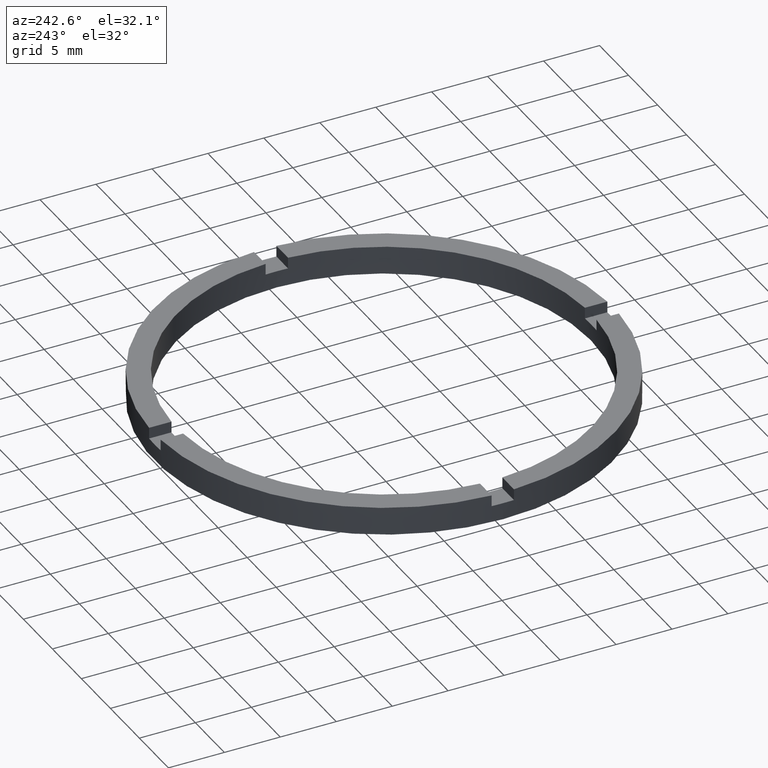
[diagram: clean part render]
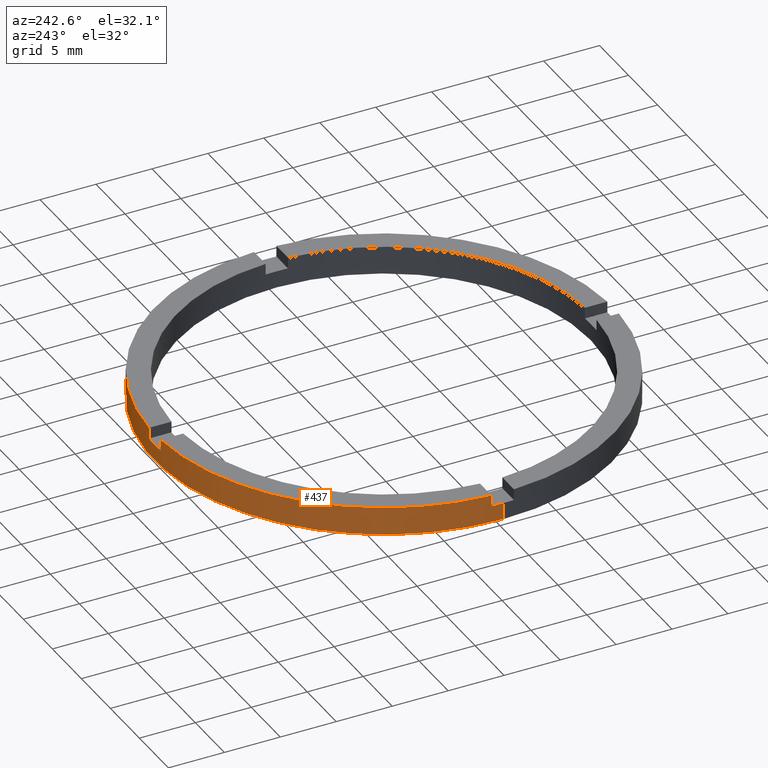
[diagram: same view with one face highlighted and labeled with its STEP entity id]
A machine part, auxiliary view. The second image highlights one B-rep face of the part: STEP entity #437.
In plain terms, the highlighted cylindrical surface (partial cylindrical patch) has radius 20.5 mm, axis along (-0, -0, -1).
Its self-contained STEP definition (entity closure, byte-faithful):
#12 = CARTESIAN_POINT ( 'NONE',  ( 0.9999999999999740208, 20.47559522944326815, 2.500000000000000000 ) ) ;
#14 = CARTESIAN_POINT ( 'NONE',  ( -20.47559522944327171, 0.9999999999999753530, 2.500000000000000000 ) ) ;
#18 = EDGE_CURVE ( 'NONE', #702, #478, #737, .T. ) ;
#24 = EDGE_CURVE ( 'NONE', #485, #446, #227, .T. ) ;
#32 = CARTESIAN_POINT ( 'NONE',  ( -20.50000000000000000, 0.000000000000000000, 2.500000000000000000 ) ) ;
#35 = CARTESIAN_POINT ( 'NONE',  ( -1.000000000000025535, 20.47559522944326815, 2.500000000000000000 ) ) ;
#55 = CARTESIAN_POINT ( 'NONE',  ( -1.000000000000025091, 20.47559522944326460, 2.500000000000000000 ) ) ;
#72 = DIRECTION ( 'NONE',  ( 0.000000000000000000, 0.000000000000000000, 1.000000000000000000 ) ) ;
#78 = DIRECTION ( 'NONE',  ( -0.000000000000000000, -0.000000000000000000, -1.000000000000000000 ) ) ;
#79 = DIRECTION ( 'NONE',  ( 0.000000000000000000, 0.000000000000000000, 1.000000000000000000 ) ) ;
#83 = VECTOR ( 'NONE', #218, 1000.000000000000000 ) ;
#96 = VECTOR ( 'NONE', #78, 1000.000000000000000 ) ;
#102 = EDGE_CURVE ( 'NONE', #491, #476, #293, .T. ) ;
#103 = DIRECTION ( 'NONE',  ( -0.000000000000000000, -0.000000000000000000, -1.000000000000000000 ) ) ;
#106 = VECTOR ( 'NONE', #546, 1000.000000000000000 ) ;
#112 = EDGE_CURVE ( 'NONE', #575, #476, #287, .T. ) ;
#117 = CARTESIAN_POINT ( 'NONE',  ( -20.50000000000000000, 0.000000000000000000, 1.500000000000000000 ) ) ;
#129 = DIRECTION ( 'NONE',  ( 1.000000000000000000, 0.000000000000000000, 0.000000000000000000 ) ) ;
#135 = ORIENTED_EDGE ( 'NONE', *, *, #725, .T. ) ;
#137 = VECTOR ( 'NONE', #372, 1000.000000000000000 ) ;
#161 = ORIENTED_EDGE ( 'NONE', *, *, #112, .T. ) ;
#168 = DIRECTION ( 'NONE',  ( -0.000000000000000000, -0.000000000000000000, -1.000000000000000000 ) ) ;
#174 = EDGE_CURVE ( 'NONE', #575, #494, #511, .T. ) ;
#188 = ORIENTED_EDGE ( 'NONE', *, *, #18, .F. ) ;
#193 = EDGE_CURVE ( 'NONE', #438, #478, #742, .T. ) ;
#213 = CARTESIAN_POINT ( 'NONE',  ( -1.000000000000025091, 20.47559522944326460, 1.500000000000000000 ) ) ;
#217 = DIRECTION ( 'NONE',  ( 1.000000000000000000, 0.000000000000000000, 0.000000000000000000 ) ) ;
#218 = DIRECTION ( 'NONE',  ( 0.000000000000000000, 0.000000000000000000, 1.000000000000000000 ) ) ;
#225 = AXIS2_PLACEMENT_3D ( 'NONE', #619, #687, #764 ) ;
#227 = CIRCLE ( 'NONE', #225, 20.50000000000000000 ) ;
#238 = AXIS2_PLACEMENT_3D ( 'NONE', #375, #289, #486 ) ;
#248 = CARTESIAN_POINT ( 'NONE',  ( 20.47559522944327881, 0.9999999999998416822, 2.500000000000000000 ) ) ;
#265 = CARTESIAN_POINT ( 'NONE',  ( 0.000000000000000000, 0.000000000000000000, 2.500000000000000000 ) ) ;
#276 = DIRECTION ( 'NONE',  ( -1.000000000000000000, 0.000000000000000000, 0.000000000000000000 ) ) ;
#278 = CARTESIAN_POINT ( 'NONE',  ( 0.000000000000000000, 0.000000000000000000, 2.500000000000000000 ) ) ;
#280 = CARTESIAN_POINT ( 'NONE',  ( 20.47559522944327881, 0.9999999999998416822, 2.500000000000000000 ) ) ;
#287 = LINE ( 'NONE', #248, #557 ) ;
#289 = DIRECTION ( 'NONE',  ( 0.000000000000000000, -0.000000000000000000, 1.000000000000000000 ) ) ;
#291 = CARTESIAN_POINT ( 'NONE',  ( 0.9999999999999744649, 20.47559522944327171, 2.500000000000000000 ) ) ;
#293 = CIRCLE ( 'NONE', #551, 20.50000000000000000 ) ;
#294 = CARTESIAN_POINT ( 'NONE',  ( 0.000000000000000000, 0.000000000000000000, 1.500000000000000000 ) ) ;
#338 = CARTESIAN_POINT ( 'NONE',  ( -20.47559522944327171, 0.9999999999999753530, 1.500000000000000000 ) ) ;
#363 = CARTESIAN_POINT ( 'NONE',  ( 0.000000000000000000, 0.000000000000000000, 2.500000000000000000 ) ) ;
#368 = LINE ( 'NONE', #32, #96 ) ;
#372 = DIRECTION ( 'NONE',  ( -0.000000000000000000, -0.000000000000000000, -1.000000000000000000 ) ) ;
#375 = CARTESIAN_POINT ( 'NONE',  ( 0.000000000000000000, 0.000000000000000000, 1.500000000000000000 ) ) ;
#381 = EDGE_CURVE ( 'NONE', #402, #464, #423, .T. ) ;
#387 = LINE ( 'NONE', #291, #106 ) ;
#401 = LINE ( 'NONE', #523, #137 ) ;
#402 = VERTEX_POINT ( 'NONE', #338 ) ;
#420 = FACE_OUTER_BOUND ( 'NONE', #690, .T. ) ;
#423 = CIRCLE ( 'NONE', #499, 20.50000000000000000 ) ;
#424 = VERTEX_POINT ( 'NONE', #675 ) ;
#425 = EDGE_CURVE ( 'NONE', #491, #485, #401, .T. ) ;
#437 = ADVANCED_FACE ( 'NONE', ( #420 ), #647, .T. ) ;
#438 = VERTEX_POINT ( 'NONE', #55 ) ;
#444 = DIRECTION ( 'NONE',  ( -0.000000000000000000, -0.000000000000000000, -1.000000000000000000 ) ) ;
#445 = ORIENTED_EDGE ( 'NONE', *, *, #102, .F. ) ;
#446 = VERTEX_POINT ( 'NONE', #529 ) ;
#451 = ORIENTED_EDGE ( 'NONE', *, *, #381, .F. ) ;
#454 = DIRECTION ( 'NONE',  ( 0.000000000000000000, 0.000000000000000000, 1.000000000000000000 ) ) ;
#459 = AXIS2_PLACEMENT_3D ( 'NONE', #265, #103, #276 ) ;
#464 = VERTEX_POINT ( 'NONE', #117 ) ;
#476 = VERTEX_POINT ( 'NONE', #735 ) ;
#478 = VERTEX_POINT ( 'NONE', #213 ) ;
#480 = ORIENTED_EDGE ( 'NONE', *, *, #624, .F. ) ;
#485 = VERTEX_POINT ( 'NONE', #643 ) ;
#486 = DIRECTION ( 'NONE',  ( 1.000000000000000000, 0.000000000000000000, 0.000000000000000000 ) ) ;
#491 = VERTEX_POINT ( 'NONE', #567 ) ;
#493 = ORIENTED_EDGE ( 'NONE', *, *, #425, .T. ) ;
#494 = VERTEX_POINT ( 'NONE', #12 ) ;
#499 = AXIS2_PLACEMENT_3D ( 'NONE', #294, #72, #129 ) ;
#511 = CIRCLE ( 'NONE', #597, 20.50000000000000000 ) ;
#520 = VECTOR ( 'NONE', #444, 1000.000000000000000 ) ;
#523 = CARTESIAN_POINT ( 'NONE',  ( 20.50000000000000000, 2.510525938252074481E-15, 2.500000000000000000 ) ) ;
#524 = ORIENTED_EDGE ( 'NONE', *, *, #174, .F. ) ;
#529 = CARTESIAN_POINT ( 'NONE',  ( -20.50000000000000000, 0.000000000000000000, 0.000000000000000000 ) ) ;
#546 = DIRECTION ( 'NONE',  ( 0.000000000000000000, 0.000000000000000000, 1.000000000000000000 ) ) ;
#551 = AXIS2_PLACEMENT_3D ( 'NONE', #628, #79, #217 ) ;
#557 = VECTOR ( 'NONE', #168, 1000.000000000000000 ) ;
#567 = CARTESIAN_POINT ( 'NONE',  ( 20.50000000000000000, 2.510525938252074481E-15, 1.500000000000000000 ) ) ;
#572 = CARTESIAN_POINT ( 'NONE',  ( 0.9999999999999740208, 20.47559522944326815, 1.500000000000000000 ) ) ;
#574 = EDGE_CURVE ( 'NONE', #402, #424, #673, .T. ) ;
#575 = VERTEX_POINT ( 'NONE', #280 ) ;
#585 = AXIS2_PLACEMENT_3D ( 'NONE', #278, #678, #701 ) ;
#597 = AXIS2_PLACEMENT_3D ( 'NONE', #363, #454, #607 ) ;
#607 = DIRECTION ( 'NONE',  ( 1.000000000000000000, 0.000000000000000000, 0.000000000000000000 ) ) ;
#615 = CIRCLE ( 'NONE', #585, 20.50000000000000000 ) ;
#619 = CARTESIAN_POINT ( 'NONE',  ( 0.000000000000000000, 0.000000000000000000, 0.000000000000000000 ) ) ;
#624 = EDGE_CURVE ( 'NONE', #438, #424, #615, .T. ) ;
#628 = CARTESIAN_POINT ( 'NONE',  ( 0.000000000000000000, 0.000000000000000000, 1.500000000000000000 ) ) ;
#643 = CARTESIAN_POINT ( 'NONE',  ( 20.50000000000000000, 2.510525938252074481E-15, 0.000000000000000000 ) ) ;
#647 = CYLINDRICAL_SURFACE ( 'NONE', #459, 20.50000000000000000 ) ;
#673 = LINE ( 'NONE', #14, #83 ) ;
#675 = CARTESIAN_POINT ( 'NONE',  ( -20.47559522944327171, 0.9999999999999753530, 2.500000000000000000 ) ) ;
#677 = ORIENTED_EDGE ( 'NONE', *, *, #705, .F. ) ;
#678 = DIRECTION ( 'NONE',  ( 0.000000000000000000, 0.000000000000000000, 1.000000000000000000 ) ) ;
#681 = ORIENTED_EDGE ( 'NONE', *, *, #574, .T. ) ;
#687 = DIRECTION ( 'NONE',  ( 0.000000000000000000, 0.000000000000000000, 1.000000000000000000 ) ) ;
#690 = EDGE_LOOP ( 'NONE', ( #445, #493, #716, #677, #451, #681, #480, #728, #188, #135, #524, #161 ) ) ;
#701 = DIRECTION ( 'NONE',  ( 1.000000000000000000, 0.000000000000000000, 0.000000000000000000 ) ) ;
#702 = VERTEX_POINT ( 'NONE', #572 ) ;
#705 = EDGE_CURVE ( 'NONE', #464, #446, #368, .T. ) ;
#716 = ORIENTED_EDGE ( 'NONE', *, *, #24, .T. ) ;
#725 = EDGE_CURVE ( 'NONE', #702, #494, #387, .T. ) ;
#728 = ORIENTED_EDGE ( 'NONE', *, *, #193, .T. ) ;
#735 = CARTESIAN_POINT ( 'NONE',  ( 20.47559522944327881, 0.9999999999998416822, 1.500000000000000000 ) ) ;
#737 = CIRCLE ( 'NONE', #238, 20.50000000000000000 ) ;
#742 = LINE ( 'NONE', #35, #520 ) ;
#764 = DIRECTION ( 'NONE',  ( 1.000000000000000000, 0.000000000000000000, 0.000000000000000000 ) ) ;